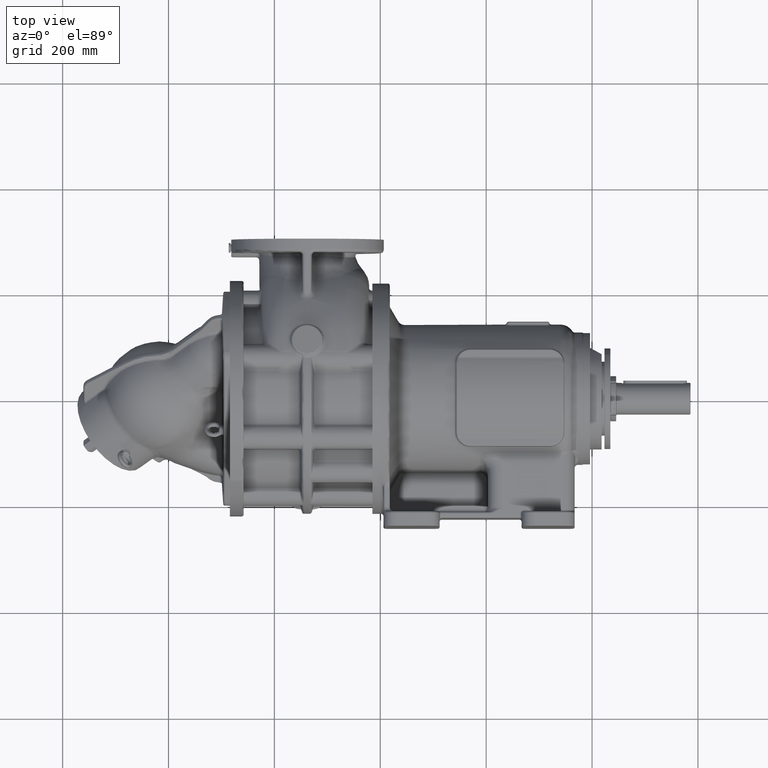
[diagram: clean part render]
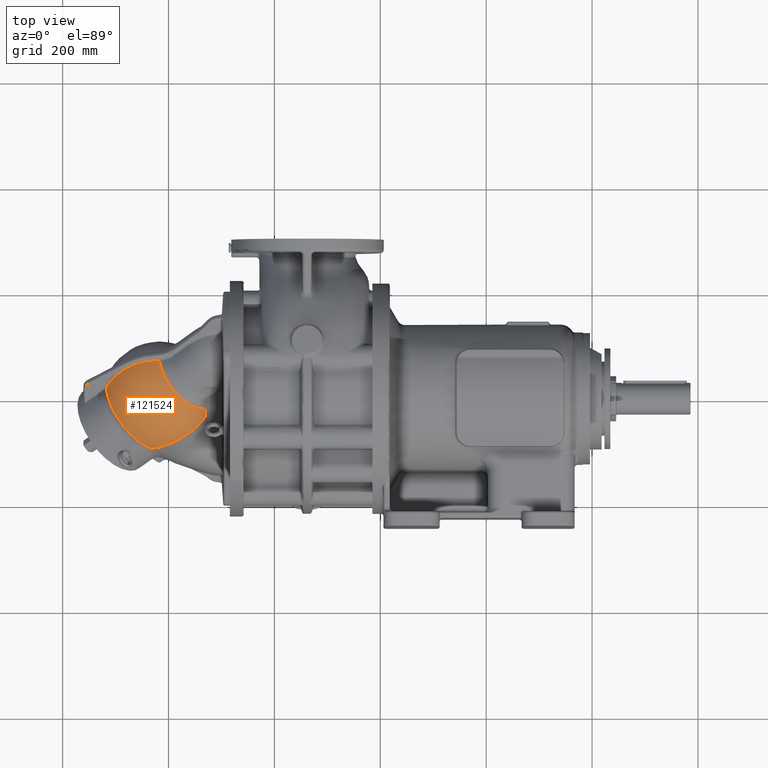
[diagram: same view with one face highlighted and labeled with its STEP entity id]
A machine part, top view. The second image highlights one B-rep face of the part: STEP entity #121524.
In plain terms, the highlighted face is a SurfaceOfRevolution surface.
Its self-contained STEP definition (entity closure, byte-faithful):
#34401=CARTESIAN_POINT('',(-4.172588833566E2,7.052149198804E1,
8.534839527890E1));
#35354=CARTESIAN_POINT('',(-4.334799676436E2,-9.454928458492E1,
2.927227210055E1));
#35437=CARTESIAN_POINT('',(-4.334799676436E2,-9.454928458492E1,
2.927227210055E1));
#35438=CARTESIAN_POINT('',(-4.330375361723E2,-9.451458676910E1,
2.957713198059E1));
#35439=CARTESIAN_POINT('',(-4.321471315423E2,-9.443822917358E1,
3.018302750626E1));
#35440=CARTESIAN_POINT('',(-4.307929865639E2,-9.430233790314E1,
3.108128881061E1));
#35441=CARTESIAN_POINT('',(-4.294268487137E2,-9.414557652100E1,
3.196437151557E1));
#35442=CARTESIAN_POINT('',(-4.280478210729E2,-9.396782325203E1,
3.283267448822E1));
#35443=CARTESIAN_POINT('',(-4.266570269957E2,-9.376915037549E1,
3.368528965325E1));
#35444=CARTESIAN_POINT('',(-4.252550765808E2,-9.354960971104E1,
3.452169049435E1));
#35445=CARTESIAN_POINT('',(-4.238427332237E2,-9.330928705295E1,
3.534128632657E1));
#35446=CARTESIAN_POINT('',(-4.224207754749E2,-9.304829591943E1,
3.614352226596E1));
#35447=CARTESIAN_POINT('',(-4.209895492958E2,-9.276668460188E1,
3.692810733345E1));
#35448=CARTESIAN_POINT('',(-4.195493649307E2,-9.246449098828E1,
3.769477317101E1));
#35449=CARTESIAN_POINT('',(-4.181005177328E2,-9.214174560641E1,
3.844326251396E1));
#35450=CARTESIAN_POINT('',(-4.166434549222E2,-9.179850847497E1,
3.917324572568E1));
#35451=CARTESIAN_POINT('',(-4.151789584198E2,-9.143492532672E1,
3.988425087438E1));
#35452=CARTESIAN_POINT('',(-4.137077678724E2,-9.105115021224E1,
4.057585600590E1));
#35453=CARTESIAN_POINT('',(-4.122306476111E2,-9.064735530050E1,
4.124766353531E1));
#35454=CARTESIAN_POINT('',(-4.107483669475E2,-9.022375300444E1,
4.189924534920E1));
#35455=CARTESIAN_POINT('',(-4.092616978219E2,-8.978057821348E1,
4.253018816391E1));
#35456=CARTESIAN_POINT('',(-4.077714438137E2,-8.931808994688E1,
4.314009938394E1));
#35457=CARTESIAN_POINT('',(-4.062783194862E2,-8.883653606869E1,
4.372865294480E1));
#35458=CARTESIAN_POINT('',(-4.047826961677E2,-8.833605842804E1,
4.429567513578E1));
#35459=CARTESIAN_POINT('',(-4.032850056487E2,-8.781681446808E1,
4.484097449228E1));
#35460=CARTESIAN_POINT('',(-4.017856235703E2,-8.727893786843E1,
4.536438525984E1));
#35461=CARTESIAN_POINT('',(-4.002852145479E2,-8.672266649650E1,
4.586565396169E1));
#35462=CARTESIAN_POINT('',(-3.987845680224E2,-8.614830243273E1,
4.634456240526E1));
#35463=CARTESIAN_POINT('',(-3.972844521159E2,-8.555615264878E1,
4.680092442700E1));
#35464=CARTESIAN_POINT('',(-3.957856153340E2,-8.494652931500E1,
4.723458852493E1));
#35465=CARTESIAN_POINT('',(-3.942886127723E2,-8.431967403295E1,
4.764548150278E1));
#35466=CARTESIAN_POINT('',(-3.927939867764E2,-8.367582479352E1,
4.803354454321E1));
#35467=CARTESIAN_POINT('',(-3.913023803331E2,-8.301526497476E1,
4.839871642022E1));
#35468=CARTESIAN_POINT('',(-3.898138911956E2,-8.233805031459E1,
4.874104841736E1));
#35469=CARTESIAN_POINT('',(-3.883282129366E2,-8.164403488770E1,
4.906063836831E1));
#35470=CARTESIAN_POINT('',(-3.868451361417E2,-8.093307812859E1,
4.935753426861E1));
#35471=CARTESIAN_POINT('',(-3.853644431910E2,-8.020499871077E1,
4.963174900417E1));
#35472=CARTESIAN_POINT('',(-3.838868853429E2,-7.946007295981E1,
4.988310545102E1));
#35473=CARTESIAN_POINT('',(-3.824132241051E2,-7.869859898376E1,
5.011145264528E1));
#35474=CARTESIAN_POINT('',(-3.809441643171E2,-7.792085245943E1,
5.031667727151E1));
#35475=CARTESIAN_POINT('',(-3.794806731571E2,-7.712727616004E1,
5.049862965252E1));
#35476=CARTESIAN_POINT('',(-3.780240431151E2,-7.631853923721E1,
5.065713619220E1));
#35477=CARTESIAN_POINT('',(-3.765754727218E2,-7.549529475576E1,
5.079209965131E1));
#35478=CARTESIAN_POINT('',(-3.751362223318E2,-7.465827418115E1,
5.090347751248E1));
#35479=CARTESIAN_POINT('',(-3.737065289971E2,-7.380763672927E1,
5.099134584527E1));
#35480=CARTESIAN_POINT('',(-3.722865474519E2,-7.294347606621E1,
5.105577545635E1));
#35481=CARTESIAN_POINT('',(-3.708764801587E2,-7.206590041381E1,
5.109683210405E1));
#35482=CARTESIAN_POINT('',(-3.694764222955E2,-7.117493868753E1,
5.111456583161E1));
#35483=CARTESIAN_POINT('',(-3.680862791423E2,-7.027049406467E1,
5.110900828233E1));
#35484=CARTESIAN_POINT('',(-3.667060146391E2,-6.935253790126E1,
5.108024780152E1));
#35485=CARTESIAN_POINT('',(-3.653355255867E2,-6.842095610197E1,
5.102833570053E1));
#35486=CARTESIAN_POINT('',(-3.639753805168E2,-6.747606999855E1,
5.095333924144E1));
#35487=CARTESIAN_POINT('',(-3.626262677233E2,-6.651829351167E1,
5.085535417123E1));
#35488=CARTESIAN_POINT('',(-3.612888222914E2,-6.554800970445E1,
5.073450144323E1));
#35489=CARTESIAN_POINT('',(-3.599637310639E2,-6.456565982415E1,
5.059091136509E1));
#35490=CARTESIAN_POINT('',(-3.586518088413E2,-6.357182811278E1,
5.042471012150E1));
#35491=CARTESIAN_POINT('',(-3.573538263806E2,-6.256708212944E1,
5.023606486375E1));
#35492=CARTESIAN_POINT('',(-3.560705657203E2,-6.155202134170E1,
5.002518101586E1));
#35493=CARTESIAN_POINT('',(-3.548026142613E2,-6.052710951545E1,
4.979226794999E1));
#35494=CARTESIAN_POINT('',(-3.535504981046E2,-5.949277165784E1,
4.953754603330E1));
#35495=CARTESIAN_POINT('',(-3.523147636850E2,-5.844946314456E1,
4.926127710642E1));
#35496=CARTESIAN_POINT('',(-3.510959330365E2,-5.739763558104E1,
4.896372342528E1));
#35497=CARTESIAN_POINT('',(-3.498944924842E2,-5.633775279075E1,
4.864510472265E1));
#35498=CARTESIAN_POINT('',(-3.487109113957E2,-5.527026371104E1,
4.830566334628E1));
#35499=CARTESIAN_POINT('',(-3.475456778422E2,-5.419564294162E1,
4.794566708209E1));
#35500=CARTESIAN_POINT('',(-3.463990667503E2,-5.311417073640E1,
4.756533587747E1));
#35501=CARTESIAN_POINT('',(-3.452712645278E2,-5.202603212659E1,
4.716485936908E1));
#35502=CARTESIAN_POINT('',(-3.441624951858E2,-5.093143535995E1,
4.674443592764E1));
#35503=CARTESIAN_POINT('',(-3.430729127697E2,-4.983050527088E1,
4.630423644499E1));
#35504=CARTESIAN_POINT('',(-3.420022073631E2,-4.872286347912E1,
4.584423347078E1));
#35505=CARTESIAN_POINT('',(-3.409501727305E2,-4.760814016406E1,
4.536435642481E1));
#35506=CARTESIAN_POINT('',(-3.399164741740E2,-4.648598944534E1,
4.486457210348E1));
#35507=CARTESIAN_POINT('',(-3.389008942674E2,-4.535623483846E1,
4.434489988394E1));
#35508=CARTESIAN_POINT('',(-3.379033499630E2,-4.421877816030E1,
4.380536020388E1));
#35509=CARTESIAN_POINT('',(-3.369237408654E2,-4.307346354893E1,
4.324593294383E1));
#35510=CARTESIAN_POINT('',(-3.359620663891E2,-4.192018154365E1,
4.266659727291E1));
#35511=CARTESIAN_POINT('',(-3.350202674424E2,-4.076119477876E1,
4.206856483982E1));
#35512=CARTESIAN_POINT('',(-3.341000696039E2,-3.959869990974E1,
4.145315158109E1));
#35513=CARTESIAN_POINT('',(-3.332031376693E2,-3.843510256662E1,
4.082173887357E1));
#35514=CARTESIAN_POINT('',(-3.323307457221E2,-3.727220084994E1,
4.017597838374E1));
#35515=CARTESIAN_POINT('',(-3.314850587445E2,-3.611386743751E1,
3.951767390514E1));
#35516=CARTESIAN_POINT('',(-3.309375153017E2,-3.534275108895E1,
3.906996551415E1));
#35517=CARTESIAN_POINT('',(-3.306679139982E2,-3.495771769517E1,
3.884405543930E1));
#39555=CARTESIAN_POINT('',(-4.781202919646E2,5.636990585216E1,
7.114935931055E1));
#39556=CARTESIAN_POINT('',(-4.776253935545E2,5.662129161540E1,
7.140069182785E1));
#39557=CARTESIAN_POINT('',(-4.766302626970E2,5.711813560380E1,
7.189742416841E1));
#39558=CARTESIAN_POINT('',(-4.751218306629E2,5.784551131186E1,
7.262461575696E1));
#39559=CARTESIAN_POINT('',(-4.735988683890E2,5.855445974913E1,
7.333336479711E1));
#39560=CARTESIAN_POINT('',(-4.720623556910E2,5.924458895365E1,
7.402327994699E1));
#39561=CARTESIAN_POINT('',(-4.705133532575E2,5.991550037246E1,
7.469396352426E1));
#39562=CARTESIAN_POINT('',(-4.689529333446E2,6.056682492174E1,
7.534504675850E1));
#39563=CARTESIAN_POINT('',(-4.673820890649E2,6.119825503080E1,
7.597622605906E1));
#39564=CARTESIAN_POINT('',(-4.658018033083E2,6.180951334183E1,
7.658722804528E1));
#39565=CARTESIAN_POINT('',(-4.642130593175E2,6.240034845812E1,
7.717780419749E1));
#39566=CARTESIAN_POINT('',(-4.626168299317E2,6.297053791224E1,
7.774773403611E1));
#39567=CARTESIAN_POINT('',(-4.610140870504E2,6.351988407879E1,
7.829682116437E1));
#39568=CARTESIAN_POINT('',(-4.594056670609E2,6.404825556121E1,
7.882493858842E1));
#39569=CARTESIAN_POINT('',(-4.577923542798E2,6.455554990167E1,
7.933198757237E1));
#39570=CARTESIAN_POINT('',(-4.561759054076E2,6.504138891902E1,
7.981759352253E1));
#39571=CARTESIAN_POINT('',(-4.545585408681E2,6.550534186309E1,
8.028132801974E1));
#39572=CARTESIAN_POINT('',(-4.529404592193E2,6.594760841466E1,
8.072339708532E1));
#39573=CARTESIAN_POINT('',(-4.513210229525E2,6.636857060627E1,
8.114419197639E1));
#39574=CARTESIAN_POINT('',(-4.496997436536E2,6.676851563974E1,
8.154400442868E1));
#39575=CARTESIAN_POINT('',(-4.480760674106E2,6.714768253271E1,
8.192309338009E1));
#39576=CARTESIAN_POINT('',(-4.464492828475E2,6.750634134147E1,
8.228168313903E1));
#39577=CARTESIAN_POINT('',(-4.448186179831E2,6.784484986838E1,
8.262011758710E1));
#39578=CARTESIAN_POINT('',(-4.431833310674E2,6.816346931221E1,
8.293867023134E1));
#39579=CARTESIAN_POINT('',(-4.415424699661E2,6.846243387763E1,
8.323758152625E1));
#39580=CARTESIAN_POINT('',(-4.398969806067E2,6.874159351610E1,
8.351670483355E1));
#39581=CARTESIAN_POINT('',(-4.382480929183E2,6.900078528910E1,
8.377587933305E1));
#39582=CARTESIAN_POINT('',(-4.365969925924E2,6.923988728300E1,
8.401498519456E1));
#39583=CARTESIAN_POINT('',(-4.349448086298E2,6.945881883592E1,
8.423394451127E1));
#39584=CARTESIAN_POINT('',(-4.332923416786E2,6.965756473228E1,
8.443274816492E1));
#39585=CARTESIAN_POINT('',(-4.316404357318E2,6.983611892330E1,
8.461139547809E1));
#39586=CARTESIAN_POINT('',(-4.299899064504E2,6.999449466774E1,
8.476990498781E1));
#39587=CARTESIAN_POINT('',(-4.283416263462E2,7.013271548726E1,
8.490830495365E1));
#39588=CARTESIAN_POINT('',(-4.266965888173E2,7.025081561593E1,
8.502663470332E1));
#39589=CARTESIAN_POINT('',(-4.250557016470E2,7.034885680815E1,
8.512496226932E1));
#39590=CARTESIAN_POINT('',(-4.239653068046E2,7.040089320994E1,
8.517723189791E1));
#39591=CARTESIAN_POINT('',(-4.234210348594E2,7.042360339998E1,
8.520007081360E1));
#39593=CARTESIAN_POINT('',(-4.234210348594E2,7.042360339998E1,
8.520007081360E1));
#39594=CARTESIAN_POINT('',(-4.229415923372E2,7.044359537122E1,
8.522019905793E1));
#39595=CARTESIAN_POINT('',(-4.219616344835E2,7.047776454484E1,
8.525747162815E1));
#39596=CARTESIAN_POINT('',(-4.204153097646E2,7.050997200561E1,
8.530385939811E1));
#39597=CARTESIAN_POINT('',(-4.188341868596E2,7.051991034297E1,
8.533234880578E1));
#39598=CARTESIAN_POINT('',(-4.177847002062E2,7.052074520772E1,
8.534358833604E1));
#39599=CARTESIAN_POINT('',(-4.172589151184E2,7.051707660786E1,
8.534296044824E1));
#39601=CARTESIAN_POINT('',(-3.668811627255E2,4.230459339110E1,
4.230459339110E1));
#39602=DIRECTION('',(-7.071067811866E-1,-5.E-1,-5.E-1));
#39603=DIRECTION('',(4.867134984237E-1,-8.571008783315E-1,1.687840478707E-1));
#39604=AXIS2_PLACEMENT_3D('',#39601,#39602,#39603);
#39606=CARTESIAN_POINT('',(-3.318319242613E2,-1.941700090119E1,
5.445907929637E1));
#39607=CARTESIAN_POINT('',(-3.317614352659E2,-1.968137341091E1,
5.419208878292E1));
#39608=CARTESIAN_POINT('',(-3.316251948559E2,-2.021360172111E1,
5.365516819164E1));
#39609=CARTESIAN_POINT('',(-3.314353851029E2,-2.102146717774E1,
5.284135845437E1));
#39610=CARTESIAN_POINT('',(-3.312599097308E2,-2.184047559465E1,
5.201695492499E1));
#39611=CARTESIAN_POINT('',(-3.310987823102E2,-2.267148698150E1,
5.118039560059E1));
#39612=CARTESIAN_POINT('',(-3.309523702603E2,-2.351591200930E1,
5.033023892433E1));
#39613=CARTESIAN_POINT('',(-3.308213550303E2,-2.437535905565E1,
4.946526758578E1));
#39614=CARTESIAN_POINT('',(-3.307065602575E2,-2.525136839394E1,
4.858434608561E1));
#39615=CARTESIAN_POINT('',(-3.306087659039E2,-2.614568569618E1,
4.768581047261E1));
#39616=CARTESIAN_POINT('',(-3.305287913327E2,-2.706011622375E1,
4.676767683817E1));
#39617=CARTESIAN_POINT('',(-3.304676762697E2,-2.799655816637E1,
4.582790664762E1));
#39618=CARTESIAN_POINT('',(-3.304268061494E2,-2.895468957729E1,
4.486686205772E1));
#39619=CARTESIAN_POINT('',(-3.304075972255E2,-2.993470583022E1,
4.388443697983E1));
#39620=CARTESIAN_POINT('',(-3.304114179647E2,-3.093338460223E1,
4.288381683681E1));
#39621=CARTESIAN_POINT('',(-3.304392567577E2,-3.194637295144E1,
4.186912317578E1));
#39622=CARTESIAN_POINT('',(-3.304916224150E2,-3.296494669830E1,
4.084924684604E1));
#39623=CARTESIAN_POINT('',(-3.305682021566E2,-3.397742192937E1,
3.983665607938E1));
#39624=CARTESIAN_POINT('',(-3.306337253252E2,-3.463817201367E1,
3.917608596132E1));
#39625=CARTESIAN_POINT('',(-3.306698409099E2,-3.496565249759E1,
3.884855405813E1));
#39627=CARTESIAN_POINT('',(-5.177189716317E2,1.950661596255E1,
3.433170056892E1));
#39628=CARTESIAN_POINT('',(-5.176758136465E2,1.910032934106E1,
3.467695258239E1));
#39629=CARTESIAN_POINT('',(-5.175829339933E2,1.828386872856E1,
3.536206152967E1));
#39630=CARTESIAN_POINT('',(-5.174239659690E2,1.704788933222E1,
3.637322619011E1));
#39631=CARTESIAN_POINT('',(-5.172453978989E2,1.580099853599E1,
3.736758359979E1));
#39632=CARTESIAN_POINT('',(-5.170472842612E2,1.454357674627E1,
3.834483039618E1));
#39633=CARTESIAN_POINT('',(-5.168296854972E2,1.327600758236E1,
3.930466843690E1));
#39634=CARTESIAN_POINT('',(-5.165926679928E2,1.199867775935E1,
4.024680489072E1));
#39635=CARTESIAN_POINT('',(-5.163363040583E2,1.071197697012E1,
4.117095232686E1));
#39636=CARTESIAN_POINT('',(-5.160606719062E2,9.416297766477E0,
4.207682880277E1));
#39637=CARTESIAN_POINT('',(-5.157658556275E2,8.112035439362E0,
4.296415795006E1));
#39638=CARTESIAN_POINT('',(-5.154519451658E2,6.799587898341E0,
4.383266905879E1));
#39639=CARTESIAN_POINT('',(-5.151190362902E2,5.479355550178E0,
4.468209716011E1));
#39640=CARTESIAN_POINT('',(-5.147672305660E2,4.151741176657E0,
4.551218310709E1));
#39641=CARTESIAN_POINT('',(-5.143966353233E2,2.817149811659E0,
4.632267365380E1));
#39642=CARTESIAN_POINT('',(-5.140073636250E2,1.475988617622E0,
4.711332153256E1));
#39643=CARTESIAN_POINT('',(-5.135995342315E2,1.286667613359E-1,
4.788388552938E1));
#39644=CARTESIAN_POINT('',(-5.131732715650E2,-1.224404710846E0,
4.863413055751E1));
#39645=CARTESIAN_POINT('',(-5.127287056715E2,-2.582812998453E0,
4.936382772917E1));
#39646=CARTESIAN_POINT('',(-5.122659721809E2,-3.946143672843E0,
5.007275442543E1));
#39647=CARTESIAN_POINT('',(-5.117852122659E2,-5.313980803674E0,
5.076069436413E1));
#39648=CARTESIAN_POINT('',(-5.112865725984E2,-6.685907085757E0,
5.142743766581E1));
#39649=CARTESIAN_POINT('',(-5.107702053056E2,-8.061503966352E0,
5.207278091776E1));
#39650=CARTESIAN_POINT('',(-5.102362679229E2,-9.440351772852E0,
5.269652723607E1));
#39651=CARTESIAN_POINT('',(-5.096849233459E2,-1.082202984084E1,
5.329848632573E1));
#39652=CARTESIAN_POINT('',(-5.091163397810E2,-1.220611664246E1,
5.387847453865E1));
#39653=CARTESIAN_POINT('',(-5.085306906942E2,-1.359218991500E1,
5.443631492972E1));
#39654=CARTESIAN_POINT('',(-5.079281547573E2,-1.497982678970E1,
5.497183731077E1));
#39655=CARTESIAN_POINT('',(-5.073089157947E2,-1.636860392076E1,
5.548487830249E1));
#39656=CARTESIAN_POINT('',(-5.066731627261E2,-1.775809761451E1,
5.597528138428E1));
#39657=CARTESIAN_POINT('',(-5.060210895096E2,-1.914788395863E1,
5.644289694201E1));
#39658=CARTESIAN_POINT('',(-5.053528950824E2,-2.053753895157E1,
5.688758231366E1));
#39659=CARTESIAN_POINT('',(-5.046687832998E2,-2.192663863185E1,
5.730920183284E1));
#39660=CARTESIAN_POINT('',(-5.039689628734E2,-2.331475920739E1,
5.770762687019E1));
#39661=CARTESIAN_POINT('',(-5.032536473073E2,-2.470147718482E1,
5.808273587261E1));
#39662=CARTESIAN_POINT('',(-5.025230548327E2,-2.608636949868E1,
5.843441440033E1));
#39663=CARTESIAN_POINT('',(-5.017774083417E2,-2.746901364049E1,
5.876255516188E1));
#39664=CARTESIAN_POINT('',(-5.010169353192E2,-2.884898778766E1,
5.906705804676E1));
#39665=CARTESIAN_POINT('',(-5.002418677732E2,-3.022587093217E1,
5.934783015601E1));
#39666=CARTESIAN_POINT('',(-4.994524421645E2,-3.159924300902E1,
5.960478583056E1));
#39667=CARTESIAN_POINT('',(-4.986488993342E2,-3.296868502435E1,
5.983784667735E1));
#39668=CARTESIAN_POINT('',(-4.978314844304E2,-3.433377918333E1,
6.004694159323E1));
#39669=CARTESIAN_POINT('',(-4.970004468332E2,-3.569410901758E1,
6.023200678671E1));
#39670=CARTESIAN_POINT('',(-4.961560400790E2,-3.704925951226E1,
6.039298579734E1));
#39671=CARTESIAN_POINT('',(-4.952985217826E2,-3.839881723266E1,
6.052982951302E1));
#39672=CARTESIAN_POINT('',(-4.944281535592E2,-3.974237045030E1,
6.064249618491E1));
#39673=CARTESIAN_POINT('',(-4.935452009443E2,-4.107950926859E1,
6.073095144022E1));
#39674=CARTESIAN_POINT('',(-4.926499333125E2,-4.240982574786E1,
6.079516829266E1));
#39675=CARTESIAN_POINT('',(-4.917426237956E2,-4.373291402988E1,
6.083512715070E1));
#39676=CARTESIAN_POINT('',(-4.908235491993E2,-4.504837046162E1,
6.085081582353E1));
#39677=CARTESIAN_POINT('',(-4.898929899185E2,-4.635579371839E1,
6.084222952479E1));
#39678=CARTESIAN_POINT('',(-4.889512298520E2,-4.765478492624E1,
6.080937087402E1));
#39679=CARTESIAN_POINT('',(-4.879985563156E2,-4.894494778370E1,
6.075224989587E1));
#39680=CARTESIAN_POINT('',(-4.870352599550E2,-5.022588868274E1,
6.067088401704E1));
#39681=CARTESIAN_POINT('',(-4.860616346562E2,-5.149721682883E1,
6.056529806096E1));
#39682=CARTESIAN_POINT('',(-4.850779774568E2,-5.275854436017E1,
6.043552424020E1));
#39683=CARTESIAN_POINT('',(-4.840845884549E2,-5.400948646590E1,
6.028160214668E1));
#39684=CARTESIAN_POINT('',(-4.830817707175E2,-5.524966150358E1,
6.010357873956E1));
#39685=CARTESIAN_POINT('',(-4.820698301883E2,-5.647869111565E1,
5.990150833095E1));
#39686=CARTESIAN_POINT('',(-4.810490755943E2,-5.769620034476E1,
5.967545256930E1));
#39687=CARTESIAN_POINT('',(-4.800198183513E2,-5.890181774822E1,
5.942548042063E1));
#39688=CARTESIAN_POINT('',(-4.789823724695E2,-6.009517551144E1,
5.915166814748E1));
#39689=CARTESIAN_POINT('',(-4.779370544563E2,-6.127590956063E1,
5.885409928545E1));
#39690=CARTESIAN_POINT('',(-4.768841832209E2,-6.244365967347E1,
5.853286461780E1));
#39691=CARTESIAN_POINT('',(-4.758240799777E2,-6.359806958785E1,
5.818806214807E1));
#39692=CARTESIAN_POINT('',(-4.747570681492E2,-6.473878710954E1,
5.781979707065E1));
#39693=CARTESIAN_POINT('',(-4.736834732666E2,-6.586546422078E1,
5.742818173857E1));
#39694=CARTESIAN_POINT('',(-4.726036228643E2,-6.697775719326E1,
5.701333562667E1));
#39695=CARTESIAN_POINT('',(-4.715178463795E2,-6.807532669198E1,
5.657538529489E1));
#39696=CARTESIAN_POINT('',(-4.704264750540E2,-6.915783787673E1,
5.611446434956E1));
#39697=CARTESIAN_POINT('',(-4.693298418638E2,-7.022496047415E1,
5.563071341641E1));
#39698=CARTESIAN_POINT('',(-4.682282814012E2,-7.127636889637E1,
5.512428009264E1));
#39699=CARTESIAN_POINT('',(-4.671221297691E2,-7.231174234544E1,
5.459531890158E1));
#39700=CARTESIAN_POINT('',(-4.660117243617E2,-7.333076501739E1,
5.404399118667E1));
#39701=CARTESIAN_POINT('',(-4.648974038464E2,-7.433312611269E1,
5.347046509643E1));
#39702=CARTESIAN_POINT('',(-4.637795081114E2,-7.531851988332E1,
5.287491555734E1));
#39703=CARTESIAN_POINT('',(-4.626583785001E2,-7.628664544068E1,
5.225752441317E1));
#39704=CARTESIAN_POINT('',(-4.615343574269E2,-7.723720711705E1,
5.161848024336E1));
#39705=CARTESIAN_POINT('',(-4.604077878231E2,-7.816991493242E1,
5.095797804617E1));
#39706=CARTESIAN_POINT('',(-4.592790123873E2,-7.908448516646E1,
5.027621874993E1));
#39707=CARTESIAN_POINT('',(-4.581483741236E2,-7.998063983624E1,
4.957340945312E1));
#39708=CARTESIAN_POINT('',(-4.570162188298E2,-8.085810476978E1,
4.884976501551E1));
#39709=CARTESIAN_POINT('',(-4.558828951137E2,-8.171660979270E1,
4.810550826853E1));
#39710=CARTESIAN_POINT('',(-4.547487532249E2,-8.255588985232E1,
4.734086948730E1));
#39711=CARTESIAN_POINT('',(-4.536141337264E2,-8.337569317701E1,
4.655607852903E1));
#39712=CARTESIAN_POINT('',(-4.524793728084E2,-8.417577671110E1,
4.575136778285E1));
#39713=CARTESIAN_POINT('',(-4.513448041948E2,-8.495590425018E1,
4.492697300121E1));
#39714=CARTESIAN_POINT('',(-4.502107971352E2,-8.571582125215E1,
4.408316183964E1));
#39715=CARTESIAN_POINT('',(-4.490777283079E2,-8.645527613090E1,
4.322021541574E1));
#39716=CARTESIAN_POINT('',(-4.479459692569E2,-8.717402918676E1,
4.233841947216E1));
#39717=CARTESIAN_POINT('',(-4.468157887334E2,-8.787191125028E1,
4.143798491235E1));
#39718=CARTESIAN_POINT('',(-4.456874407255E2,-8.854876207247E1,
4.051911067491E1));
#39719=CARTESIAN_POINT('',(-4.445612422026E2,-8.920438398597E1,
3.958204737761E1));
#39720=CARTESIAN_POINT('',(-4.434377369667E2,-8.983845747425E1,
3.862724447090E1));
#39721=CARTESIAN_POINT('',(-4.423174895975E2,-9.045067375373E1,
3.765519192540E1));
#39722=CARTESIAN_POINT('',(-4.412008353803E2,-9.104086739792E1,
3.666619729277E1));
#39723=CARTESIAN_POINT('',(-4.400877539389E2,-9.160905431604E1,
3.566025209624E1));
#39724=CARTESIAN_POINT('',(-4.389783039792E2,-9.215519634522E1,
3.463738466131E1));
#39725=CARTESIAN_POINT('',(-4.378724991772E2,-9.267924268250E1,
3.359762523175E1));
#39726=CARTESIAN_POINT('',(-4.367704833286E2,-9.318113734233E1,
3.254089089052E1));
#39727=CARTESIAN_POINT('',(-4.356719572246E2,-9.366074676154E1,
3.146748438176E1));
#39728=CARTESIAN_POINT('',(-4.345782959366E2,-9.411814219715E1,
3.037621408545E1));
#39729=CARTESIAN_POINT('',(-4.338492034217E2,-9.440774109840E1,
2.963968435457E1));
#39730=CARTESIAN_POINT('',(-4.334863719824E2,-9.454889304015E1,
2.926771521018E1));
#39732=CARTESIAN_POINT('',(-5.177189716309E2,1.950661596362E1,
3.433170057066E1));
#39733=CARTESIAN_POINT('',(-5.175188197137E2,1.989837098726E1,
3.472350937086E1));
#39734=CARTESIAN_POINT('',(-5.171078693699E2,2.068183789351E1,
3.550709641078E1));
#39735=CARTESIAN_POINT('',(-5.164592905729E2,2.185665486346E1,
3.668212462746E1));
#39736=CARTESIAN_POINT('',(-5.157787311697E2,2.303018000513E1,
3.785588701661E1));
#39737=CARTESIAN_POINT('',(-5.150663110510E2,2.420167986916E1,
3.902764480827E1));
#39738=CARTESIAN_POINT('',(-5.143222129247E2,2.537037705293E1,
4.019661579801E1));
#39739=CARTESIAN_POINT('',(-5.135466244806E2,2.653554679036E1,
4.136207215215E1));
#39740=CARTESIAN_POINT('',(-5.127397669409E2,2.769646466312E1,
4.252328532717E1));
#39741=CARTESIAN_POINT('',(-5.119019472033E2,2.885233776971E1,
4.367945758535E1));
#39742=CARTESIAN_POINT('',(-5.110335152634E2,3.000237499480E1,
4.482979168144E1));
#39743=CARTESIAN_POINT('',(-5.101348469643E2,3.114580493895E1,
4.597351457182E1));
#39744=CARTESIAN_POINT('',(-5.092063497537E2,3.228186849215E1,
4.710986541888E1));
#39745=CARTESIAN_POINT('',(-5.082484804497E2,3.340979779255E1,
4.823807376573E1));
#39746=CARTESIAN_POINT('',(-5.072617419038E2,3.452882340275E1,
4.935736666419E1));
#39747=CARTESIAN_POINT('',(-5.062466732978E2,3.563818558608E1,
5.046698109528E1));
#39748=CARTESIAN_POINT('',(-5.052038673619E2,3.673711606642E1,
5.156614780472E1));
#39749=CARTESIAN_POINT('',(-5.041339362381E2,3.782487639305E1,
5.265412605246E1));
#39750=CARTESIAN_POINT('',(-5.030376445236E2,3.890062675184E1,
5.373007333169E1));
#39751=CARTESIAN_POINT('',(-5.019158330751E2,3.996351929422E1,
5.479313727065E1));
#39752=CARTESIAN_POINT('',(-5.007693589693E2,4.101275344001E1,
5.584251648627E1));
#39753=CARTESIAN_POINT('',(-4.995990704172E2,4.204759027072E1,
5.687747855642E1));
#39754=CARTESIAN_POINT('',(-4.984058798993E2,4.306729105522E1,
5.789728864868E1));
#39755=CARTESIAN_POINT('',(-4.971905969035E2,4.407125682058E1,
5.890135092879E1));
#39756=CARTESIAN_POINT('',(-4.959540065827E2,4.505894411835E1,
5.988912396557E1));
#39757=CARTESIAN_POINT('',(-4.946969032300E2,4.602984379946E1,
6.086009906046E1));
#39758=CARTESIAN_POINT('',(-4.934191241602E2,4.698418650653E1,
6.181449455705E1));
#39759=CARTESIAN_POINT('',(-4.921204923674E2,4.792214840545E1,
6.275247615031E1));
#39760=CARTESIAN_POINT('',(-4.908007433736E2,4.884388923012E1,
6.367419124799E1));
#39761=CARTESIAN_POINT('',(-4.894598204368E2,4.974958030972E1,
6.457982863754E1));
#39762=CARTESIAN_POINT('',(-4.885514854835E2,5.034292491302E1,
6.517313466578E1));
#39763=CARTESIAN_POINT('',(-4.880938467368E2,5.063690529663E1,
6.546709780647E1));
#39765=CARTESIAN_POINT('',(-4.880938467368E2,5.063690529663E1,
6.546709780647E1));
#39766=CARTESIAN_POINT('',(-4.876400356749E2,5.092842983991E1,
6.575860477861E1));
#39767=CARTESIAN_POINT('',(-4.867251735494E2,5.150796993297E1,
6.633547472409E1));
#39768=CARTESIAN_POINT('',(-4.853304259965E2,5.236552585512E1,
6.718392877030E1));
#39769=CARTESIAN_POINT('',(-4.839165092447E2,5.320756585691E1,
6.801481397469E1));
#39770=CARTESIAN_POINT('',(-4.824857871530E2,5.403161625495E1,
6.882778483322E1));
#39771=CARTESIAN_POINT('',(-4.810411010402E2,5.483527277579E1,
6.962223055814E1));
#39772=CARTESIAN_POINT('',(-4.795850497701E2,5.561664376490E1,
7.039765942908E1));
#39773=CARTESIAN_POINT('',(-4.786094019206E2,5.612145954699E1,
7.090096544751E1));
#39774=CARTESIAN_POINT('',(-4.781202919646E2,5.636990585216E1,
7.114935931055E1));
#49082=VERTEX_POINT('',#34401);
#49084=VERTEX_POINT('',#39555);
#49085=VERTEX_POINT('',#39591);
#49088=VERTEX_POINT('',#39765);
#49090=VERTEX_POINT('',#39732);
#49163=VERTEX_POINT('',#35354);
#49209=VERTEX_POINT('',#35517);
#49210=CARTESIAN_POINT('',(-3.318319242472E2,-1.941700089779E1,
5.445907927308E1));
#49211=VERTEX_POINT('',#49210);
#121498=CARTESIAN_POINT('',(-3.159949850547E2,8.091549993362E0,
8.091549993363E0));
#121499=CARTESIAN_POINT('',(-3.156955767397E2,2.215115194017E-1,
2.215115194028E-1));
#121500=CARTESIAN_POINT('',(-3.198675421371E2,-1.974237345190E1,
-1.974237345190E1));
#121501=CARTESIAN_POINT('',(-3.448393721678E2,-4.824470614397E1,
-4.824470614397E1));
#121502=CARTESIAN_POINT('',(-3.748212740130E2,-6.149817104310E1,
-6.149817104310E1));
#121503=CARTESIAN_POINT('',(-3.906814677402E2,-6.526406484883E1,
-6.526406484883E1));
#121505=CARTESIAN_POINT('',(-2.674332078832E2,1.126249166352E2,
1.126249166352E2));
#121506=DIRECTION('',(-7.071067811865E-1,-5.E-1,-5.E-1));
#121507=AXIS1_PLACEMENT('',#121505,#121506);
#121508=SURFACE_OF_REVOLUTION('',#121504,#121507);
#121510=ORIENTED_EDGE('',*,*,#121509,.T.);
#121512=ORIENTED_EDGE('',*,*,#121511,.T.);
#121513=ORIENTED_EDGE('',*,*,#117406,.F.);
#121515=ORIENTED_EDGE('',*,*,#121514,.T.);
#121516=ORIENTED_EDGE('',*,*,#118380,.F.);
#121518=ORIENTED_EDGE('',*,*,#121517,.F.);
#121519=ORIENTED_EDGE('',*,*,#121488,.T.);
#121521=ORIENTED_EDGE('',*,*,#121520,.T.);
#121522=EDGE_LOOP('',(#121510,#121512,#121513,#121515,#121516,#121518,#121519,
#121521));
#121523=FACE_OUTER_BOUND('',#121522,.F.);
#121524=ADVANCED_FACE('',(#121523),#121508,.T.);
#35518=B_SPLINE_CURVE_WITH_KNOTS('',3,(#35437,#35438,#35439,#35440,#35441,
#35442,#35443,#35444,#35445,#35446,#35447,#35448,#35449,#35450,#35451,#35452,
#35453,#35454,#35455,#35456,#35457,#35458,#35459,#35460,#35461,#35462,#35463,
#35464,#35465,#35466,#35467,#35468,#35469,#35470,#35471,#35472,#35473,#35474,
#35475,#35476,#35477,#35478,#35479,#35480,#35481,#35482,#35483,#35484,#35485,
#35486,#35487,#35488,#35489,#35490,#35491,#35492,#35493,#35494,#35495,#35496,
#35497,#35498,#35499,#35500,#35501,#35502,#35503,#35504,#35505,#35506,#35507,
#35508,#35509,#35510,#35511,#35512,#35513,#35514,#35515,#35516,#35517),
.UNSPECIFIED.,.F.,.F.,(4,1,1,1,1,1,1,1,1,1,1,1,1,1,1,1,1,1,1,1,1,1,1,1,1,1,1,1,
1,1,1,1,1,1,1,1,1,1,1,1,1,1,1,1,1,1,1,1,1,1,1,1,1,1,1,1,1,1,1,1,1,1,1,1,1,1,1,1,
1,1,1,1,1,1,1,1,1,1,4),(0.E0,1.282051282051E-2,2.564102564103E-2,
3.846153846154E-2,5.128205128205E-2,6.410256410256E-2,7.692307692308E-2,
8.974358974359E-2,1.025641025641E-1,1.153846153846E-1,1.282051282051E-1,
1.410256410256E-1,1.538461538462E-1,1.666666666667E-1,1.794871794872E-1,
1.923076923077E-1,2.051282051282E-1,2.179487179487E-1,2.307692307692E-1,
2.435897435897E-1,2.564102564103E-1,2.692307692308E-1,2.820512820513E-1,
2.948717948718E-1,3.076923076923E-1,3.205128205128E-1,3.333333333333E-1,
3.461538461538E-1,3.589743589744E-1,3.717948717949E-1,3.846153846154E-1,
3.974358974359E-1,4.102564102564E-1,4.230769230769E-1,4.358974358974E-1,
4.487179487179E-1,4.615384615385E-1,4.743589743590E-1,4.871794871795E-1,5.E-1,
5.128205128205E-1,5.256410256410E-1,5.384615384615E-1,5.512820512821E-1,
5.641025641026E-1,5.769230769231E-1,5.897435897436E-1,6.025641025641E-1,
6.153846153846E-1,6.282051282051E-1,6.410256410256E-1,6.538461538462E-1,
6.666666666667E-1,6.794871794872E-1,6.923076923077E-1,7.051282051282E-1,
7.179487179487E-1,7.307692307692E-1,7.435897435897E-1,7.564102564103E-1,
7.692307692308E-1,7.820512820513E-1,7.948717948718E-1,8.076923076923E-1,
8.205128205128E-1,8.333333333333E-1,8.461538461538E-1,8.589743589744E-1,
8.717948717949E-1,8.846153846154E-1,8.974358974359E-1,9.102564102564E-1,
9.230769230769E-1,9.358974358974E-1,9.487179487179E-1,9.615384615385E-1,
9.743589743590E-1,9.871794871795E-1,1.E0),.UNSPECIFIED.);
#39592=B_SPLINE_CURVE_WITH_KNOTS('',3,(#39555,#39556,#39557,#39558,#39559,
#39560,#39561,#39562,#39563,#39564,#39565,#39566,#39567,#39568,#39569,#39570,
#39571,#39572,#39573,#39574,#39575,#39576,#39577,#39578,#39579,#39580,#39581,
#39582,#39583,#39584,#39585,#39586,#39587,#39588,#39589,#39590,#39591),
.UNSPECIFIED.,.F.,.F.,(4,1,1,1,1,1,1,1,1,1,1,1,1,1,1,1,1,1,1,1,1,1,1,1,1,1,1,1,
1,1,1,1,1,1,4),(0.E0,2.941176470588E-2,5.882352941176E-2,8.823529411765E-2,
1.176470588235E-1,1.470588235294E-1,1.764705882353E-1,2.058823529412E-1,
2.352941176471E-1,2.647058823529E-1,2.941176470588E-1,3.235294117647E-1,
3.529411764706E-1,3.823529411765E-1,4.117647058824E-1,4.411764705882E-1,
4.705882352941E-1,5.E-1,5.294117647059E-1,5.588235294118E-1,5.882352941176E-1,
6.176470588235E-1,6.470588235294E-1,6.764705882353E-1,7.058823529412E-1,
7.352941176471E-1,7.647058823529E-1,7.941176470588E-1,8.235294117647E-1,
8.529411764706E-1,8.823529411765E-1,9.117647058824E-1,9.411764705882E-1,
9.705882352941E-1,1.E0),.UNSPECIFIED.);
#39600=B_SPLINE_CURVE_WITH_KNOTS('',3,(#39593,#39594,#39595,#39596,#39597,
#39598,#39599),.UNSPECIFIED.,.F.,.F.,(4,1,1,1,4),(0.E0,2.5E-1,5.E-1,7.5E-1,
1.E0),.UNSPECIFIED.);
#39605=CIRCLE('',#39604,7.201205348085E1);
#39626=B_SPLINE_CURVE_WITH_KNOTS('',3,(#39606,#39607,#39608,#39609,#39610,
#39611,#39612,#39613,#39614,#39615,#39616,#39617,#39618,#39619,#39620,#39621,
#39622,#39623,#39624,#39625),.UNSPECIFIED.,.F.,.F.,(4,1,1,1,1,1,1,1,1,1,1,1,1,1,
1,1,1,4),(0.E0,5.882352941176E-2,1.176470588235E-1,1.764705882353E-1,
2.352941176471E-1,2.941176470588E-1,3.529411764706E-1,4.117647058824E-1,
4.705882352941E-1,5.294117647059E-1,5.882352941176E-1,6.470588235294E-1,
7.058823529412E-1,7.647058823529E-1,8.235294117647E-1,8.823529411765E-1,
9.411764705882E-1,1.E0),.UNSPECIFIED.);
#39731=B_SPLINE_CURVE_WITH_KNOTS('',3,(#39627,#39628,#39629,#39630,#39631,
#39632,#39633,#39634,#39635,#39636,#39637,#39638,#39639,#39640,#39641,#39642,
#39643,#39644,#39645,#39646,#39647,#39648,#39649,#39650,#39651,#39652,#39653,
#39654,#39655,#39656,#39657,#39658,#39659,#39660,#39661,#39662,#39663,#39664,
#39665,#39666,#39667,#39668,#39669,#39670,#39671,#39672,#39673,#39674,#39675,
#39676,#39677,#39678,#39679,#39680,#39681,#39682,#39683,#39684,#39685,#39686,
#39687,#39688,#39689,#39690,#39691,#39692,#39693,#39694,#39695,#39696,#39697,
#39698,#39699,#39700,#39701,#39702,#39703,#39704,#39705,#39706,#39707,#39708,
#39709,#39710,#39711,#39712,#39713,#39714,#39715,#39716,#39717,#39718,#39719,
#39720,#39721,#39722,#39723,#39724,#39725,#39726,#39727,#39728,#39729,#39730),
.UNSPECIFIED.,.F.,.F.,(4,1,1,1,1,1,1,1,1,1,1,1,1,1,1,1,1,1,1,1,1,1,1,1,1,1,1,1,
1,1,1,1,1,1,1,1,1,1,1,1,1,1,1,1,1,1,1,1,1,1,1,1,1,1,1,1,1,1,1,1,1,1,1,1,1,1,1,1,
1,1,1,1,1,1,1,1,1,1,1,1,1,1,1,1,1,1,1,1,1,1,1,1,1,1,1,1,1,1,1,1,1,4),(0.E0,
9.900990099010E-3,1.980198019802E-2,2.970297029703E-2,3.960396039604E-2,
4.950495049505E-2,5.940594059406E-2,6.930693069307E-2,7.920792079208E-2,
8.910891089109E-2,9.900990099010E-2,1.089108910891E-1,1.188118811881E-1,
1.287128712871E-1,1.386138613861E-1,1.485148514851E-1,1.584158415842E-1,
1.683168316832E-1,1.782178217822E-1,1.881188118812E-1,1.980198019802E-1,
2.079207920792E-1,2.178217821782E-1,2.277227722772E-1,2.376237623762E-1,
2.475247524752E-1,2.574257425743E-1,2.673267326733E-1,2.772277227723E-1,
2.871287128713E-1,2.970297029703E-1,3.069306930693E-1,3.168316831683E-1,
3.267326732673E-1,3.366336633663E-1,3.465346534653E-1,3.564356435644E-1,
3.663366336634E-1,3.762376237624E-1,3.861386138614E-1,3.960396039604E-1,
4.059405940594E-1,4.158415841584E-1,4.257425742574E-1,4.356435643564E-1,
4.455445544554E-1,4.554455445545E-1,4.653465346535E-1,4.752475247525E-1,
4.851485148515E-1,4.950495049505E-1,5.049504950495E-1,5.148514851485E-1,
5.247524752475E-1,5.346534653465E-1,5.445544554455E-1,5.544554455446E-1,
5.643564356436E-1,5.742574257426E-1,5.841584158416E-1,5.940594059406E-1,
6.039603960396E-1,6.138613861386E-1,6.237623762376E-1,6.336633663366E-1,
6.435643564356E-1,6.534653465347E-1,6.633663366337E-1,6.732673267327E-1,
6.831683168317E-1,6.930693069307E-1,7.029702970297E-1,7.128712871287E-1,
7.227722772277E-1,7.326732673267E-1,7.425742574257E-1,7.524752475248E-1,
7.623762376238E-1,7.722772277228E-1,7.821782178218E-1,7.920792079208E-1,
8.019801980198E-1,8.118811881188E-1,8.217821782178E-1,8.316831683168E-1,
8.415841584158E-1,8.514851485149E-1,8.613861386139E-1,8.712871287129E-1,
8.811881188119E-1,8.910891089109E-1,9.009900990099E-1,9.108910891089E-1,
9.207920792079E-1,9.306930693069E-1,9.405940594059E-1,9.504950495050E-1,
9.603960396040E-1,9.702970297030E-1,9.801980198020E-1,9.900990099010E-1,1.E0),
.UNSPECIFIED.);
#39764=B_SPLINE_CURVE_WITH_KNOTS('',3,(#39732,#39733,#39734,#39735,#39736,
#39737,#39738,#39739,#39740,#39741,#39742,#39743,#39744,#39745,#39746,#39747,
#39748,#39749,#39750,#39751,#39752,#39753,#39754,#39755,#39756,#39757,#39758,
#39759,#39760,#39761,#39762,#39763),.UNSPECIFIED.,.F.,.F.,(4,1,1,1,1,1,1,1,1,1,
1,1,1,1,1,1,1,1,1,1,1,1,1,1,1,1,1,1,1,4),(0.E0,3.448275862069E-2,
6.896551724138E-2,1.034482758621E-1,1.379310344828E-1,1.724137931034E-1,
2.068965517241E-1,2.413793103448E-1,2.758620689655E-1,3.103448275862E-1,
3.448275862069E-1,3.793103448276E-1,4.137931034483E-1,4.482758620690E-1,
4.827586206897E-1,5.172413793103E-1,5.517241379310E-1,5.862068965517E-1,
6.206896551724E-1,6.551724137931E-1,6.896551724138E-1,7.241379310345E-1,
7.586206896552E-1,7.931034482759E-1,8.275862068966E-1,8.620689655172E-1,
8.965517241379E-1,9.310344827586E-1,9.655172413793E-1,1.E0),.UNSPECIFIED.);
#39775=B_SPLINE_CURVE_WITH_KNOTS('',3,(#39765,#39766,#39767,#39768,#39769,
#39770,#39771,#39772,#39773,#39774),.UNSPECIFIED.,.F.,.F.,(4,1,1,1,1,1,1,4),(
0.E0,1.428571428571E-1,2.857142857143E-1,4.285714285714E-1,5.714285714286E-1,
7.142857142857E-1,8.571428571429E-1,1.E0),.UNSPECIFIED.);
#117406=EDGE_CURVE('',#49211,#49082,#39605,.T.);
#118380=EDGE_CURVE('',#49163,#49209,#35518,.T.);
#121488=EDGE_CURVE('',#49090,#49088,#39764,.T.);
#121504=B_SPLINE_CURVE_WITH_KNOTS('',3,(#121498,#121499,#121500,#121501,#121502,
#121503),.UNSPECIFIED.,.F.,.F.,(4,1,1,4),(0.E0,2.536003244868E-1,
6.302306055792E-1,1.E0),.UNSPECIFIED.);
#121509=EDGE_CURVE('',#49084,#49085,#39592,.T.);
#121511=EDGE_CURVE('',#49085,#49082,#39600,.T.);
#121514=EDGE_CURVE('',#49211,#49209,#39626,.T.);
#121517=EDGE_CURVE('',#49090,#49163,#39731,.T.);
#121520=EDGE_CURVE('',#49088,#49084,#39775,.T.);